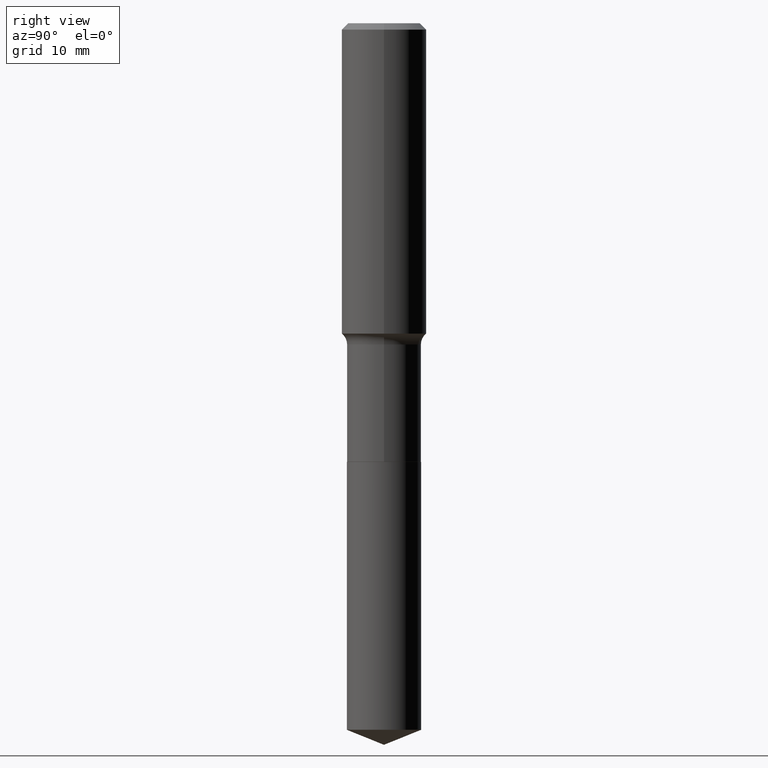
[diagram: clean part render]
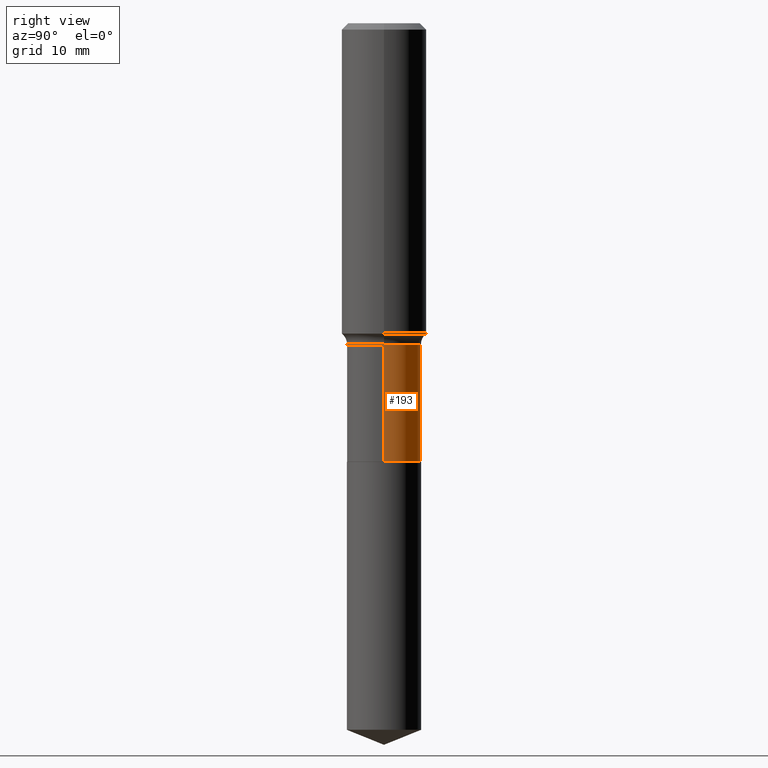
[diagram: same view with one face highlighted and labeled with its STEP entity id]
A machine part, right view. The second image highlights one B-rep face of the part: STEP entity #193.
In plain terms, the highlighted cylindrical surface (partial cylindrical patch) has radius 5.2502 mm, axis along (-0, 0, 1).
Its self-contained STEP definition (entity closure, byte-faithful):
#13 = DIRECTION ( 'NONE',  ( -2.445468806185136877E-29, 3.491481338843145188E-15, 1.000000000000000000 ) ) ;
#18 = DIRECTION ( 'NONE',  ( -2.445468806185136597E-29, 3.491481338843145583E-15, 1.000000000000000000 ) ) ;
#28 = CARTESIAN_POINT ( 'NONE',  ( 5.967922074614207358E-29, -8.520611059312812251E-15, -2.440399999999999903 ) ) ;
#34 = EDGE_CURVE ( 'NONE', #131, #464, #442, .T. ) ;
#43 = VERTEX_POINT ( 'NONE', #365 ) ;
#45 = VECTOR ( 'NONE', #13, 39.37007874015748143 ) ;
#52 = AXIS2_PLACEMENT_3D ( 'NONE', #159, #431, #250 ) ;
#80 = EDGE_CURVE ( 'NONE', #488, #464, #388, .T. ) ;
#97 = DIRECTION ( 'NONE',  ( -2.445468806185136597E-29, 3.491481338843145583E-15, 1.000000000000000000 ) ) ;
#100 = EDGE_CURVE ( 'NONE', #43, #131, #191, .T. ) ;
#117 = VECTOR ( 'NONE', #139, 39.37007874015748143 ) ;
#118 = CIRCLE ( 'NONE', #288, 0.2067000000000000226 ) ;
#119 = CARTESIAN_POINT ( 'NONE',  ( 0.2066999999999999393, -7.687194463730947793E-15, -1.788300000000000223 ) ) ;
#125 = ORIENTED_EDGE ( 'NONE', *, *, #100, .F. ) ;
#130 = CARTESIAN_POINT ( 'NONE',  ( 0.000000000000000000, 0.000000000000000000, 0.000000000000000000 ) ) ;
#131 = VERTEX_POINT ( 'NONE', #119 ) ;
#139 = DIRECTION ( 'NONE',  ( -2.445468806185136877E-29, 3.491481338843145188E-15, 1.000000000000000000 ) ) ;
#151 = CARTESIAN_POINT ( 'NONE',  ( -0.2067000000000000226, -5.913521733966878155E-15, -2.440399999999999903 ) ) ;
#159 = CARTESIAN_POINT ( 'NONE',  ( 4.373231866100880373E-29, -6.243816078253197366E-15, -1.788300000000000223 ) ) ;
#160 = CYLINDRICAL_SURFACE ( 'NONE', #195, 0.2066999999999999671 ) ;
#168 = EDGE_LOOP ( 'NONE', ( #372, #171, #470, #125 ) ) ;
#171 = ORIENTED_EDGE ( 'NONE', *, *, #80, .T. ) ;
#191 = LINE ( 'NONE', #479, #45 ) ;
#193 = ADVANCED_FACE ( 'NONE', ( #358 ), #160, .T. ) ;
#195 = AXIS2_PLACEMENT_3D ( 'NONE', #130, #18, #313 ) ;
#210 = CARTESIAN_POINT ( 'NONE',  ( -0.2066999999999999671, 1.468691834816126850E-15, -1.016743883155689005E-29 ) ) ;
#221 = DIRECTION ( 'NONE',  ( 1.000000000000000000, -6.982962677686269866E-15, 0.000000000000000000 ) ) ;
#250 = DIRECTION ( 'NONE',  ( 1.000000000000000000, -6.982962677686264344E-15, 0.000000000000000000 ) ) ;
#288 = AXIS2_PLACEMENT_3D ( 'NONE', #28, #97, #221 ) ;
#313 = DIRECTION ( 'NONE',  ( 1.000000000000000000, -6.982962677686266711E-15, 4.876176775795935793E-29 ) ) ;
#358 = FACE_OUTER_BOUND ( 'NONE', #168, .T. ) ;
#365 = CARTESIAN_POINT ( 'NONE',  ( 0.2067000000000000226, -9.963989444790565044E-15, -2.440399999999999903 ) ) ;
#372 = ORIENTED_EDGE ( 'NONE', *, *, #409, .T. ) ;
#381 = CARTESIAN_POINT ( 'NONE',  ( -0.2066999999999999393, -5.913521733966878155E-15, -1.788300000000000223 ) ) ;
#388 = LINE ( 'NONE', #210, #117 ) ;
#409 = EDGE_CURVE ( 'NONE', #43, #488, #118, .T. ) ;
#431 = DIRECTION ( 'NONE',  ( -2.445468806185136597E-29, 3.491481338843145583E-15, 1.000000000000000000 ) ) ;
#442 = CIRCLE ( 'NONE', #52, 0.2066999999999999393 ) ;
#464 = VERTEX_POINT ( 'NONE', #381 ) ;
#470 = ORIENTED_EDGE ( 'NONE', *, *, #34, .F. ) ;
#479 = CARTESIAN_POINT ( 'NONE',  ( 0.2066999999999999671, -1.443378385477751018E-15, 1.007905739557019780E-29 ) ) ;
#488 = VERTEX_POINT ( 'NONE', #151 ) ;